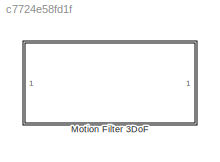
MODEL slx_c7724e58fd1f
KIND library
CONFIG AbsTol = auto
CONFIG EnableMultiTasking = off
CONFIG FixedStep = auto
CONFIG MaxStep = auto
CONFIG MinStep = auto
CONFIG RelTol = 1e-3
CONFIG SampleTimeConstraint = Unconstrained
CONFIG SolverName = VariableStepAuto
CONFIG StartTime = 0.0
CONFIG StopTime = 10.0
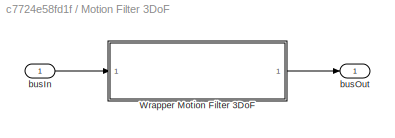
BLOCK [SubSystem] Motion Filter 3DoF
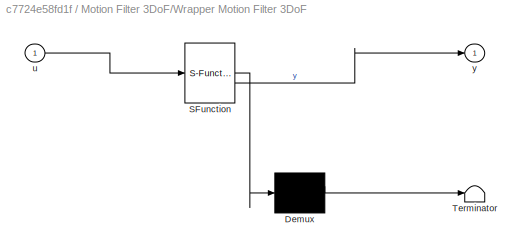
BLOCK [SubSystem] Motion Filter 3DoF/Wrapper Motion Filter 3DoF
  ErrorFcn = Stateflow.Translate.translate
  PermitHierarchicalResolution = ExplicitOnly
  SFBlockType = MATLAB Function
  TreatAsAtomicUnit = on
BLOCK [Demux] Motion Filter 3DoF/Wrapper Motion Filter 3DoF/ Demux 
  Outputs = 1
BLOCK [S-Function] Motion Filter 3DoF/Wrapper Motion Filter 3DoF/ SFunction 
  EnableBusSupport = off
  FunctionName = sf_sfun
  PortCounts = [1 2]
  SFcnIsStateOwnerBlock = off
  SFunctionDeploymentMode = off
  Tag = Stateflow S-Function 2
BLOCK [Terminator] Motion Filter 3DoF/Wrapper Motion Filter 3DoF/ Terminator 
BLOCK [Inport] Motion Filter 3DoF/Wrapper Motion Filter 3DoF/u
BLOCK [Outport] Motion Filter 3DoF/Wrapper Motion Filter 3DoF/y
BLOCK [Inport] Motion Filter 3DoF/busIn
  OutDataTypeStr = Bus: busMotionFilter3DoFIn
BLOCK [Outport] Motion Filter 3DoF/busOut
  OutDataTypeStr = Bus: busMotionFilter3DoFOut
LINE Motion Filter 3DoF/Wrapper Motion Filter 3DoF:1 -> Motion Filter 3DoF/busOut:1
LINE Motion Filter 3DoF/busIn:1 -> Motion Filter 3DoF/Wrapper Motion Filter 3DoF:1
CHART Motion Filter 3DoF/Wrapper Motion Filter 3DoF states=1 transitions=1
  STATE_LABEL 'eML_blk_kernel()'
  STATE_LABEL 'SCRIPT:\nfunction y = Wrapper_MotionFilter3DoF(u)\n    persistent motionFilter;\n    if(isempty(motionFilter))\n        motionFilter = motionfilter.MotionFilter3DoF();\n    end\n    y = motionFilter.Step(u);\nend\n'
CHART  states=0 transitions=0
